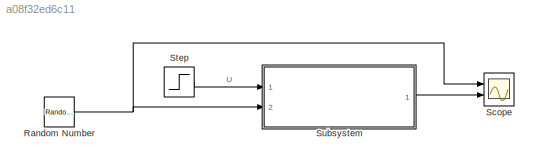
MODEL slx_a08f32ed6c11
KIND model
CONFIG AbsTol = auto
CONFIG EnableMultiTasking = off
CONFIG FixedStep = auto
CONFIG MaxStep = auto
CONFIG MinStep = auto
CONFIG RelTol = 1e-3
CONFIG SampleTimeConstraint = Unconstrained
CONFIG SolverName = VariableStepAuto
CONFIG StartTime = 0.0
CONFIG StopTime = 10
BLOCK [RandomNumber] Random Number
  SampleTime = 0.1
BLOCK [Scope] Scope
  Floating = off
  NumInputPorts = 2
  Ports = [2]
  ScopeSpecificationString = Simulink.scopes.TimeScopeBlockCfg('CurrentConfiguration', extmgr.ConfigurationSet(extmgr.Configuration('Core','General UI',true),extmgr.Configuration('Core','Source UI',true),extmgr.Configuration('Sources','WiredSimulink',true),extmgr.Configuration('Visuals','Time Domain',true,'SerializedDisplays',{struct('MinYLimReal','-2.89927','MaxYLimReal','2.31889','YLabelReal','','MinYLimMag','0.00000','MaxY...<+2062ch>
BLOCK [Step] Step
  SampleTime = 0
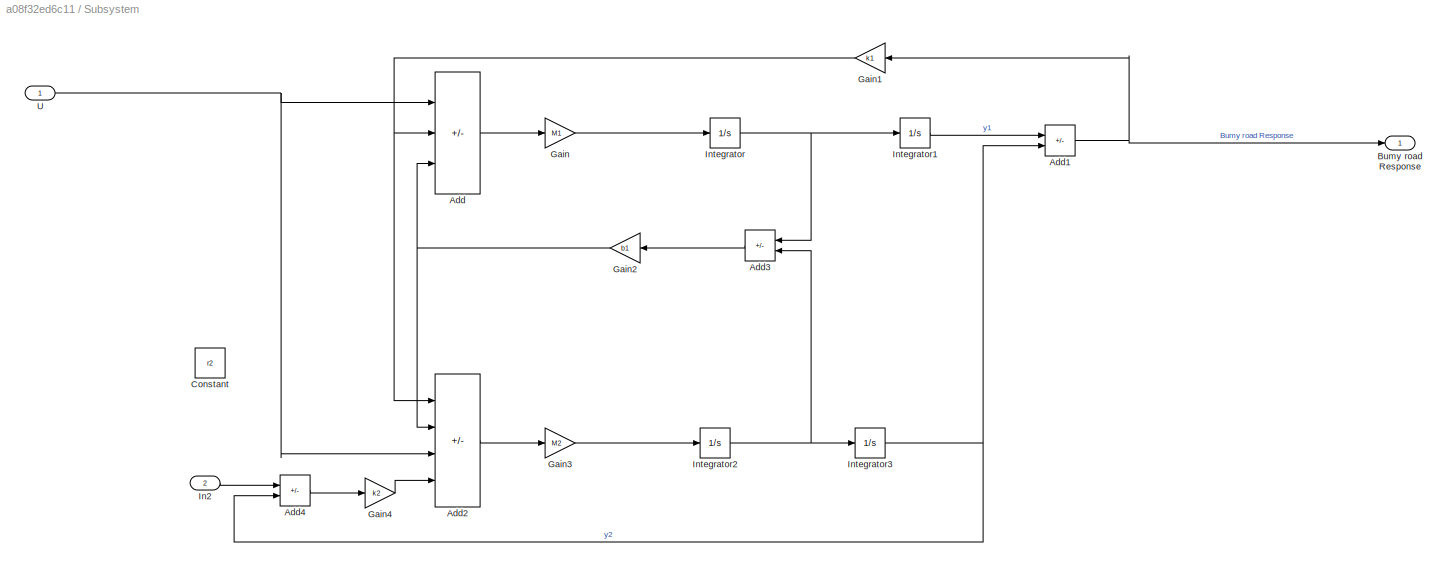
BLOCK [SubSystem] Subsystem
  Ports = [2, 1]
  RequestExecContextInheritance = off
BLOCK [Sum] Subsystem/Add
  IconShape = rectangular
  Inputs = +--
  Ports = [3, 1]
BLOCK [Sum] Subsystem/Add1
  IconShape = rectangular
  Inputs = +-
  Ports = [2, 1]
BLOCK [Sum] Subsystem/Add2
  IconShape = rectangular
  Inputs = ++-+
  Ports = [4, 1]
BLOCK [Sum] Subsystem/Add3
  IconShape = rectangular
  Inputs = +-
  NameLocation = top
  Ports = [2, 1]
BLOCK [Sum] Subsystem/Add4
  IconShape = rectangular
  Inputs = +-
  Ports = [2, 1]
BLOCK [Outport] Subsystem/Bumy road Response
BLOCK [Constant] Subsystem/Constant
  Commented = on
  Value = r2
BLOCK [Gain] Subsystem/Gain
  Gain = M1
BLOCK [Gain] Subsystem/Gain1
  Gain = k1
  NameLocation = top
BLOCK [Gain] Subsystem/Gain2
  Gain = b1
  NameLocation = top
BLOCK [Gain] Subsystem/Gain3
  Gain = M2
BLOCK [Gain] Subsystem/Gain4
  Gain = k2
BLOCK [Inport] Subsystem/In2
  Port = 2
BLOCK [Integrator] Subsystem/Integrator
  Ports = [1, 1]
BLOCK [Integrator] Subsystem/Integrator1
  Ports = [1, 1]
BLOCK [Integrator] Subsystem/Integrator2
  Ports = [1, 1]
BLOCK [Integrator] Subsystem/Integrator3
  Ports = [1, 1]
BLOCK [Inport] Subsystem/U
NET Random Number:1 -> Scope:1, Subsystem:2
LINE Step:1 -> Subsystem:1
NET Subsystem/Add1:1 -> Subsystem/Bumy road Response:1, Subsystem/Gain1:1
LINE Subsystem/Add2:1 -> Subsystem/Gain3:1
LINE Subsystem/Add3:1 -> Subsystem/Gain2:1
LINE Subsystem/Add4:1 -> Subsystem/Gain4:1
LINE Subsystem/Add:1 -> Subsystem/Gain:1
NET Subsystem/Gain1:1 -> Subsystem/Add2:1, Subsystem/Add:2
NET Subsystem/Gain2:1 -> Subsystem/Add2:2, Subsystem/Add:3
LINE Subsystem/Gain3:1 -> Subsystem/Integrator2:1
LINE Subsystem/Gain4:1 -> Subsystem/Add2:4
LINE Subsystem/Gain:1 -> Subsystem/Integrator:1
LINE Subsystem/In2:1 -> Subsystem/Add4:1
LINE Subsystem/Integrator1:1 -> Subsystem/Add1:1
NET Subsystem/Integrator2:1 -> Subsystem/Add3:2, Subsystem/Integrator3:1
NET Subsystem/Integrator3:1 -> Subsystem/Add1:2, Subsystem/Add4:2
NET Subsystem/Integrator:1 -> Subsystem/Add3:1, Subsystem/Integrator1:1
NET Subsystem/U:1 -> Subsystem/Add2:3, Subsystem/Add:1
LINE Subsystem:1 -> Scope:2
note: NET lines group one-source signal fan-out (src -> all destinations, sorted); 1:1 wires keep LINE
